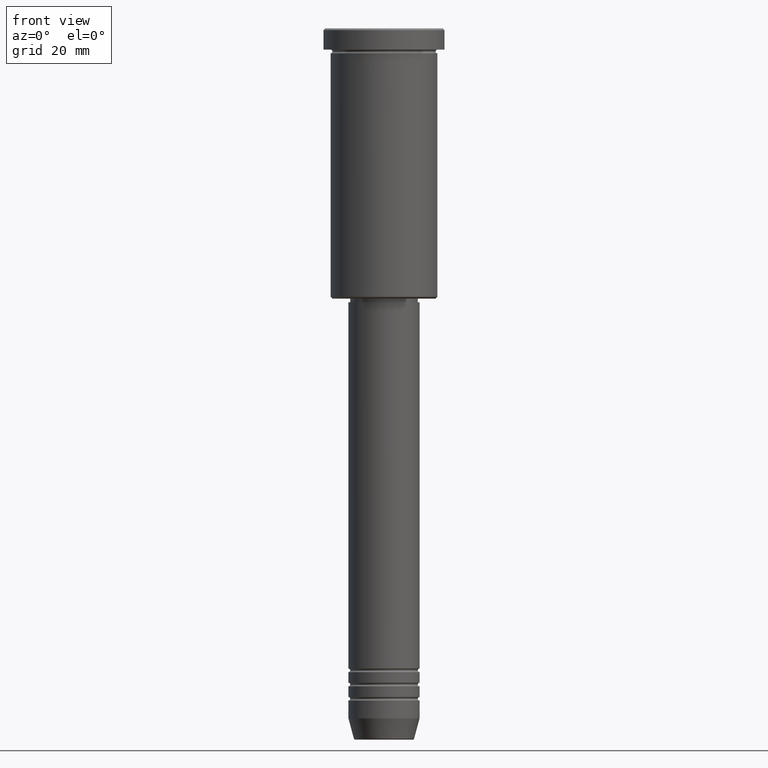
[diagram: clean part render]
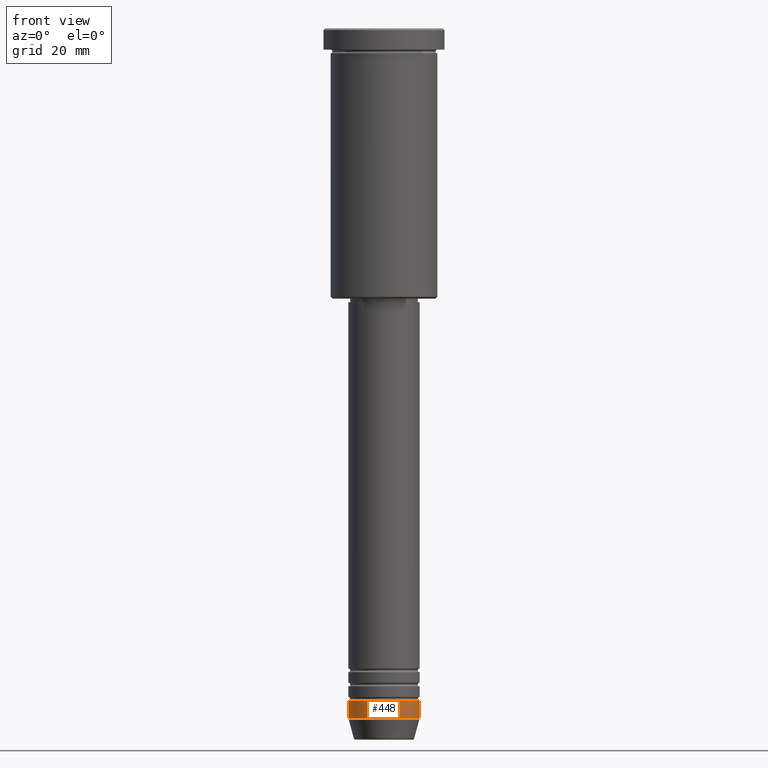
[diagram: same view with one face highlighted and labeled with its STEP entity id]
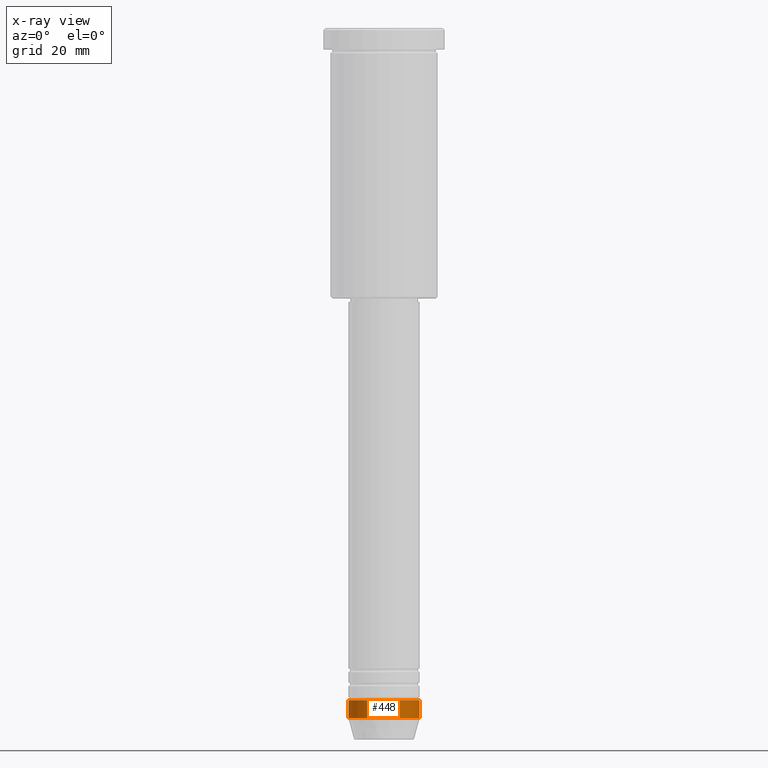
[diagram: x-ray of the same camera — body ghosted, the highlighted face saturated]
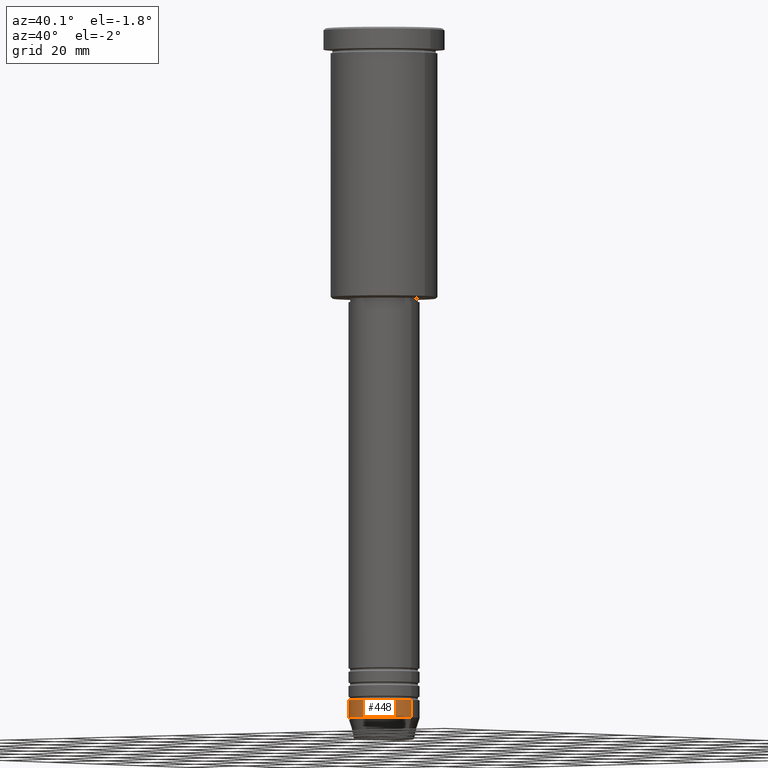
[diagram: same view with one face highlighted and labeled with its STEP entity id]
A machine part, front view. The second image highlights one B-rep face of the part: STEP entity #448.
The next image is the same camera in x-ray: the body ghosted, the highlighted face saturated — about 0% of this face is hidden behind the body in this view.
A second angle (auxiliary view) of the same face is appended — the face is thin or edge-on in the first view.
In plain terms, the highlighted cylindrical surface (edge-blend (fillet) strip) has radius 10 mm, axis along (-0, -0, 1).
Its self-contained STEP definition (entity closure, byte-faithful):
#45 = DIRECTION ( 'NONE',  ( -0.000000000000000000, -0.000000000000000000, 1.000000000000000000 ) ) ;
#74 = CARTESIAN_POINT ( 'NONE',  ( -10.00000000000000000, 1.224646799147353256E-15, -189.0000000000000284 ) ) ;
#95 = EDGE_CURVE ( 'NONE', #1179, #188, #445, .T. ) ;
#96 = CARTESIAN_POINT ( 'NONE',  ( 0.000000000000000000, 0.000000000000000000, -194.0000000000000284 ) ) ;
#116 = VECTOR ( 'NONE', #1035, 1000.000000000000000 ) ;
#142 = FACE_OUTER_BOUND ( 'NONE', #837, .T. ) ;
#177 = VERTEX_POINT ( 'NONE', #1150 ) ;
#188 = VERTEX_POINT ( 'NONE', #583 ) ;
#231 = CARTESIAN_POINT ( 'NONE',  ( 10.00000000000000178, 0.000000000000000000, 0.000000000000000000 ) ) ;
#269 = DIRECTION ( 'NONE',  ( 1.000000000000000000, 0.000000000000000000, 0.000000000000000000 ) ) ;
#272 = ORIENTED_EDGE ( 'NONE', *, *, #375, .T. ) ;
#305 = ORIENTED_EDGE ( 'NONE', *, *, #809, .T. ) ;
#365 = AXIS2_PLACEMENT_3D ( 'NONE', #511, #467, #1013 ) ;
#375 = EDGE_CURVE ( 'NONE', #177, #188, #409, .T. ) ;
#403 = DIRECTION ( 'NONE',  ( -0.000000000000000000, -0.000000000000000000, 1.000000000000000000 ) ) ;
#409 = LINE ( 'NONE', #231, #861 ) ;
#413 = CYLINDRICAL_SURFACE ( 'NONE', #428, 10.00000000000000178 ) ;
#428 = AXIS2_PLACEMENT_3D ( 'NONE', #502, #403, #1047 ) ;
#439 = AXIS2_PLACEMENT_3D ( 'NONE', #96, #1023, #269 ) ;
#445 = CIRCLE ( 'NONE', #365, 10.00000000000000000 ) ;
#448 = ADVANCED_FACE ( 'NONE', ( #142 ), #413, .T. ) ;
#467 = DIRECTION ( 'NONE',  ( -0.000000000000000000, -0.000000000000000000, 1.000000000000000000 ) ) ;
#502 = CARTESIAN_POINT ( 'NONE',  ( 0.000000000000000000, 0.000000000000000000, 0.000000000000000000 ) ) ;
#511 = CARTESIAN_POINT ( 'NONE',  ( 0.000000000000000000, 0.000000000000000000, -189.0000000000000284 ) ) ;
#556 = ORIENTED_EDGE ( 'NONE', *, *, #95, .F. ) ;
#583 = CARTESIAN_POINT ( 'NONE',  ( 10.00000000000000000, 0.000000000000000000, -189.0000000000000284 ) ) ;
#604 = ORIENTED_EDGE ( 'NONE', *, *, #1010, .F. ) ;
#651 = VERTEX_POINT ( 'NONE', #800 ) ;
#666 = LINE ( 'NONE', #1025, #116 ) ;
#800 = CARTESIAN_POINT ( 'NONE',  ( -10.00000000000000178, 1.224646799147353454E-15, -194.0000000000000284 ) ) ;
#808 = CIRCLE ( 'NONE', #439, 10.00000000000000178 ) ;
#809 = EDGE_CURVE ( 'NONE', #651, #177, #808, .T. ) ;
#837 = EDGE_LOOP ( 'NONE', ( #604, #305, #272, #556 ) ) ;
#861 = VECTOR ( 'NONE', #45, 1000.000000000000000 ) ;
#1010 = EDGE_CURVE ( 'NONE', #651, #1179, #666, .T. ) ;
#1013 = DIRECTION ( 'NONE',  ( 1.000000000000000000, 0.000000000000000000, 0.000000000000000000 ) ) ;
#1023 = DIRECTION ( 'NONE',  ( -0.000000000000000000, -0.000000000000000000, 1.000000000000000000 ) ) ;
#1025 = CARTESIAN_POINT ( 'NONE',  ( -10.00000000000000178, 1.224646799147353454E-15, 0.000000000000000000 ) ) ;
#1035 = DIRECTION ( 'NONE',  ( -0.000000000000000000, -0.000000000000000000, 1.000000000000000000 ) ) ;
#1047 = DIRECTION ( 'NONE',  ( 1.000000000000000000, 0.000000000000000000, 0.000000000000000000 ) ) ;
#1150 = CARTESIAN_POINT ( 'NONE',  ( 10.00000000000000178, 0.000000000000000000, -194.0000000000000284 ) ) ;
#1179 = VERTEX_POINT ( 'NONE', #74 ) ;